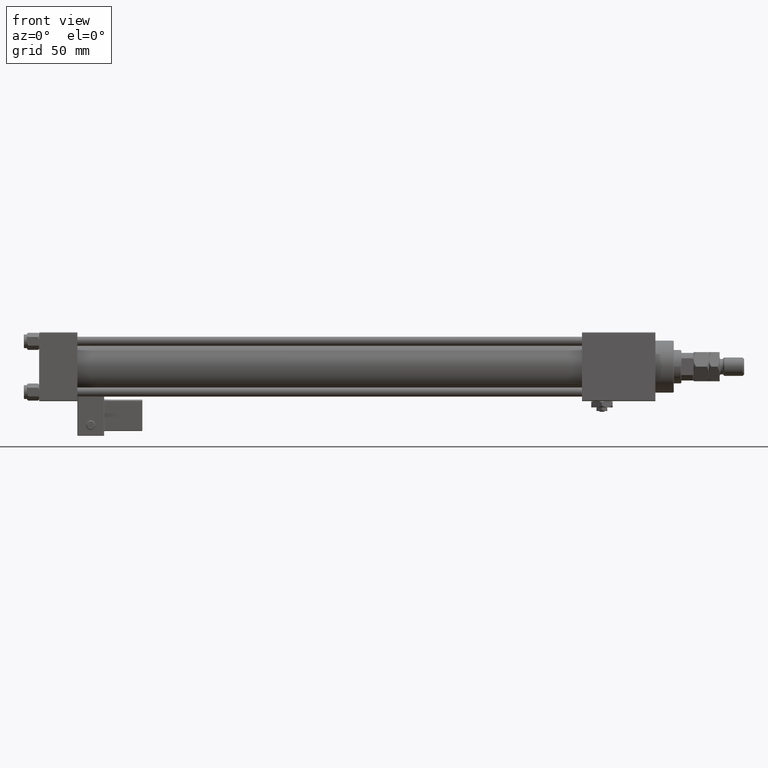
[diagram: clean part render]
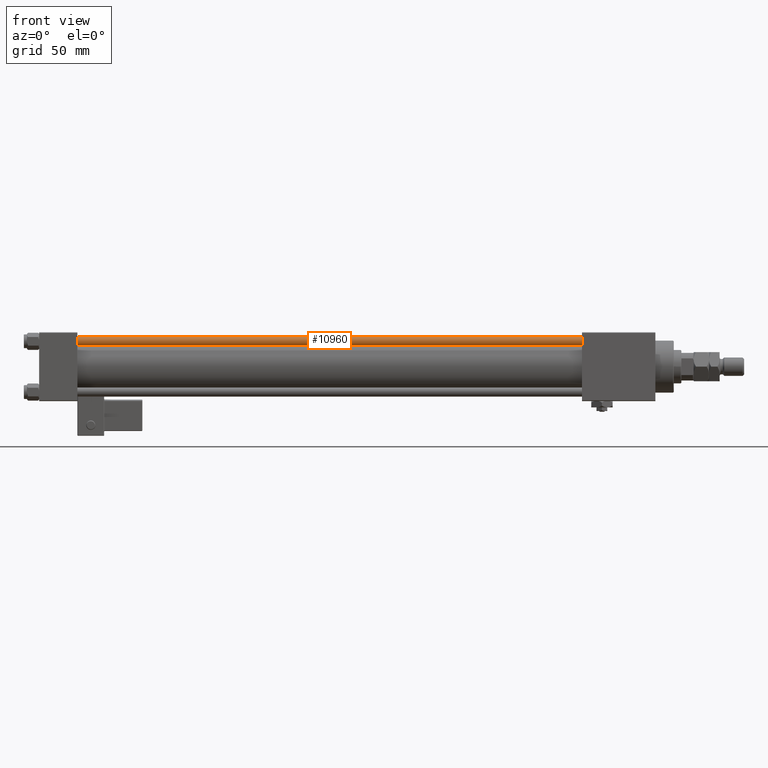
[diagram: same view with one face highlighted and labeled with its STEP entity id]
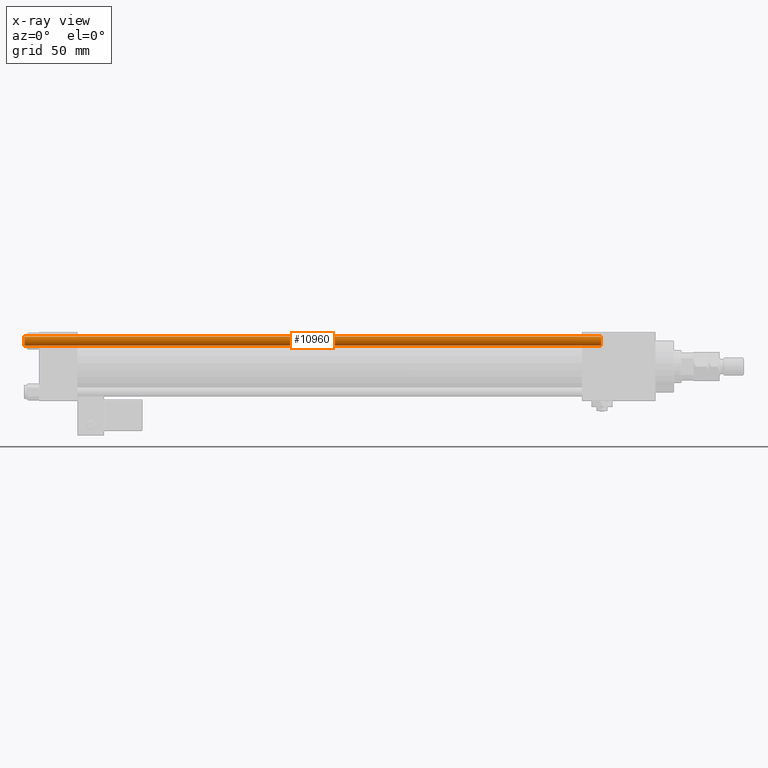
[diagram: x-ray of the same camera — body ghosted, the highlighted face saturated]
A machine part, front view. The second image highlights one B-rep face of the part: STEP entity #10960.
The next image is the same camera in x-ray: the body ghosted, the highlighted face saturated — about 0% of this face is hidden behind the body in this view.
In plain terms, the highlighted cylindrical surface (edge-blend (fillet) strip) has radius 3 mm, axis along (1, 0, -0).
Its self-contained STEP definition (entity closure, byte-faithful):
#3342 = FACE_OUTER_BOUND ( 'NONE', #26250, .T. ) ;
#6127 = CARTESIAN_POINT ( 'NONE',  ( 3.000000000000000444, 3.673940397442060361E-16, 0.5000000000000004441 ) ) ;
#7204 = VERTEX_POINT ( 'NONE', #51707 ) ;
#8622 = CARTESIAN_POINT ( 'NONE',  ( 3.000000000000000444, 3.673940397442060361E-16, 378.0000000000000000 ) ) ;
#10063 = DIRECTION ( 'NONE',  ( 1.000000000000000000, 0.000000000000000000, 0.000000000000000000 ) ) ;
#10960 = ADVANCED_FACE ( 'NONE', ( #3342 ), #50648, .T. ) ;
#11193 = EDGE_CURVE ( 'NONE', #32826, #11258, #42323, .T. ) ;
#11258 = VERTEX_POINT ( 'NONE', #19896 ) ;
#13337 = ORIENTED_EDGE ( 'NONE', *, *, #52047, .T. ) ;
#14475 = AXIS2_PLACEMENT_3D ( 'NONE', #23294, #18231, #10063 ) ;
#17087 = LINE ( 'NONE', #8622, #51658 ) ;
#18231 = DIRECTION ( 'NONE',  ( 0.000000000000000000, 0.000000000000000000, -1.000000000000000000 ) ) ;
#19272 = ORIENTED_EDGE ( 'NONE', *, *, #35907, .F. ) ;
#19896 = CARTESIAN_POINT ( 'NONE',  ( 3.000000000000000444, 3.673940397442060361E-16, 377.5000000000000000 ) ) ;
#20240 = CARTESIAN_POINT ( 'NONE',  ( 0.000000000000000000, 0.000000000000000000, 378.0000000000000000 ) ) ;
#23294 = CARTESIAN_POINT ( 'NONE',  ( 0.000000000000000000, 0.000000000000000000, 377.5000000000000000 ) ) ;
#26250 = EDGE_LOOP ( 'NONE', ( #32316, #45686, #13337, #19272 ) ) ;
#32316 = ORIENTED_EDGE ( 'NONE', *, *, #11193, .T. ) ;
#32826 = VERTEX_POINT ( 'NONE', #40720 ) ;
#34594 = CIRCLE ( 'NONE', #48089, 3.000000000000000444 ) ;
#35253 = CARTESIAN_POINT ( 'NONE',  ( 0.000000000000000000, 0.000000000000000000, 0.5000000000000004441 ) ) ;
#35907 = EDGE_CURVE ( 'NONE', #32826, #7204, #47847, .T. ) ;
#37122 = DIRECTION ( 'NONE',  ( -1.000000000000000000, 0.000000000000000000, 0.000000000000000000 ) ) ;
#37405 = DIRECTION ( 'NONE',  ( -0.000000000000000000, -0.000000000000000000, -1.000000000000000000 ) ) ;
#38486 = VECTOR ( 'NONE', #48129, 1000.000000000000000 ) ;
#39760 = DIRECTION ( 'NONE',  ( -0.000000000000000000, -0.000000000000000000, 1.000000000000000000 ) ) ;
#40047 = DIRECTION ( 'NONE',  ( 1.000000000000000000, 0.000000000000000000, 0.000000000000000000 ) ) ;
#40720 = CARTESIAN_POINT ( 'NONE',  ( -3.000000000000000444, 0.000000000000000000, 377.5000000000000000 ) ) ;
#42323 = CIRCLE ( 'NONE', #14475, 3.000000000000000444 ) ;
#43902 = CARTESIAN_POINT ( 'NONE',  ( -3.000000000000000444, 0.000000000000000000, 378.0000000000000000 ) ) ;
#44084 = AXIS2_PLACEMENT_3D ( 'NONE', #20240, #37405, #37122 ) ;
#45686 = ORIENTED_EDGE ( 'NONE', *, *, #50864, .T. ) ;
#46087 = DIRECTION ( 'NONE',  ( -0.000000000000000000, -0.000000000000000000, -1.000000000000000000 ) ) ;
#47847 = LINE ( 'NONE', #43902, #38486 ) ;
#48089 = AXIS2_PLACEMENT_3D ( 'NONE', #35253, #39760, #40047 ) ;
#48129 = DIRECTION ( 'NONE',  ( -0.000000000000000000, -0.000000000000000000, -1.000000000000000000 ) ) ;
#50648 = CYLINDRICAL_SURFACE ( 'NONE', #44084, 3.000000000000000444 ) ;
#50760 = VERTEX_POINT ( 'NONE', #6127 ) ;
#50864 = EDGE_CURVE ( 'NONE', #11258, #50760, #17087, .T. ) ;
#51658 = VECTOR ( 'NONE', #46087, 1000.000000000000000 ) ;
#51707 = CARTESIAN_POINT ( 'NONE',  ( -3.000000000000000444, 0.000000000000000000, 0.5000000000000004441 ) ) ;
#52047 = EDGE_CURVE ( 'NONE', #50760, #7204, #34594, .T. ) ;